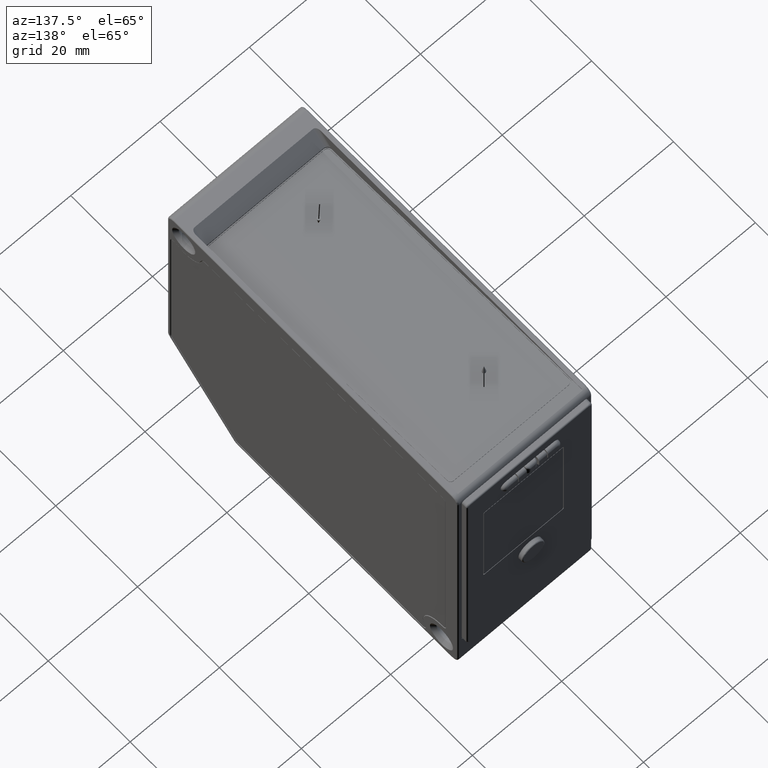
[diagram: clean part render]
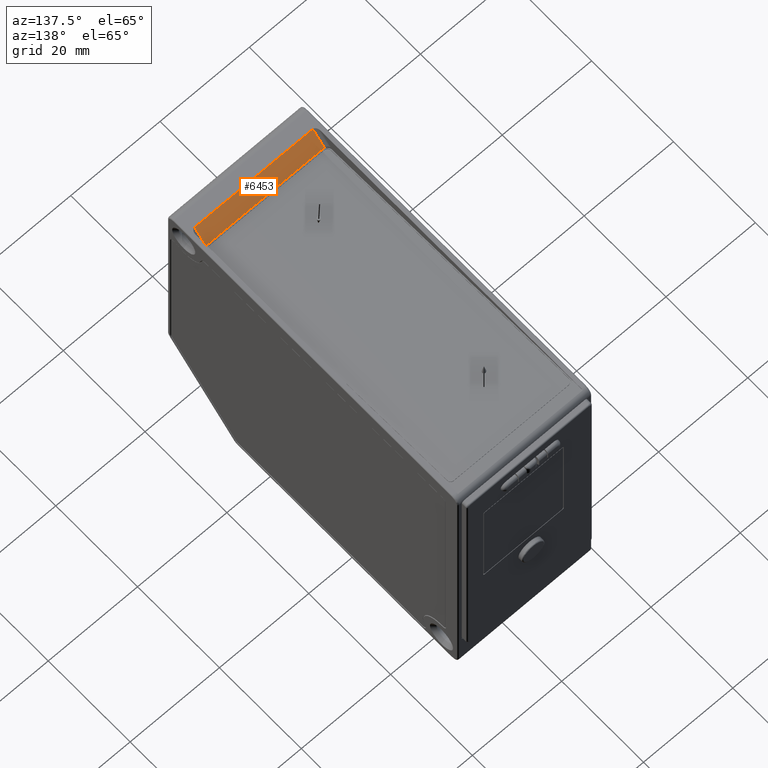
[diagram: same view with one face highlighted and labeled with its STEP entity id]
A machine part, auxiliary view. The second image highlights one B-rep face of the part: STEP entity #6453.
In plain terms, the highlighted planar face has unit normal (-0, -0.7071, -0.7071).
Its self-contained STEP definition (entity closure, byte-faithful):
#170 = EDGE_CURVE ( 'NONE', #5294, #3826, #12612, .T. ) ;
#371 = LINE ( 'NONE', #2425, #11814 ) ;
#623 = CARTESIAN_POINT ( 'NONE',  ( 0.5137795275590552047, 0.2964084542873273720, -0.1107079717068149838 ) ) ;
#740 = VECTOR ( 'NONE', #867, 39.37007874015748143 ) ;
#867 = DIRECTION ( 'NONE',  ( 1.000000000000000000, -4.628810314515842106E-17, -4.628810314515847652E-17 ) ) ;
#911 = EDGE_CURVE ( 'NONE', #2604, #8805, #3621, .T. ) ;
#1286 = LINE ( 'NONE', #2006, #4724 ) ;
#1421 = CARTESIAN_POINT ( 'NONE',  ( -0.5164289544364978335, 0.2964084542873273720, -0.1107079717068148450 ) ) ;
#1462 = EDGE_CURVE ( 'NONE', #2117, #3826, #371, .T. ) ;
#1589 = ORIENTED_EDGE ( 'NONE', *, *, #911, .F. ) ;
#1875 = CARTESIAN_POINT ( 'NONE',  ( 0.5190634948798953374, 0.2967034081832050640, -0.1110029256026926758 ) ) ;
#1922 = CARTESIAN_POINT ( 'NONE',  ( -0.5216535433070865757, 0.2964084542873275385, -0.1107079717068149838 ) ) ;
#1993 = ORIENTED_EDGE ( 'NONE', *, *, #4778, .F. ) ;
#2006 = CARTESIAN_POINT ( 'NONE',  ( -0.5216535433070865757, 0.3155610385143657326, -0.1298605559338531501 ) ) ;
#2117 = VERTEX_POINT ( 'NONE', #2821 ) ;
#2137 = CARTESIAN_POINT ( 'NONE',  ( -0.5216535433070866867, 0.2972900014379527556, -0.1115895188574402147 ) ) ;
#2316 = AXIS2_PLACEMENT_3D ( 'NONE', #2467, #7417, #7285 ) ;
#2425 = CARTESIAN_POINT ( 'NONE',  ( 0.5216535433070865757, 0.3155610385143656771, -0.1298605559338532056 ) ) ;
#2467 = CARTESIAN_POINT ( 'NONE',  ( -0.5216535433070865757, 0.3155610385143657326, -0.1298605559338531501 ) ) ;
#2604 = VERTEX_POINT ( 'NONE', #2137 ) ;
#2821 = CARTESIAN_POINT ( 'NONE',  ( 0.5216535433070866867, 0.2972900014379528111, -0.1115895188574404090 ) ) ;
#3544 = DIRECTION ( 'NONE',  ( -0.000000000000000000, -0.7071067811865479058, 0.7071067811865469066 ) ) ;
#3562 = CARTESIAN_POINT ( 'NONE',  ( 0.5905511811023621549, 0.1857004825805126103, 0.000000000000000000 ) ) ;
#3621 =( BOUNDED_CURVE ( )  B_SPLINE_CURVE ( 3, ( #9400, #7489, #1421, #4381 ),
 .UNSPECIFIED., .F., .T. ) 
 B_SPLINE_CURVE_WITH_KNOTS ( ( 4, 4 ),
 ( 6.071071996700356799, 6.283185307179586232 ),
 .UNSPECIFIED. ) 
 CURVE ( )  GEOMETRIC_REPRESENTATION_ITEM ( )  RATIONAL_B_SPLINE_CURVE ( ( 1.000000000000000000, 0.9962541750263333995, 0.9962541750263333995, 1.000000000000000000 ) ) 
 REPRESENTATION_ITEM ( '' )  );
#3653 = CARTESIAN_POINT ( 'NONE',  ( 0.5164289544364978335, 0.2964084542873273720, -0.1107079717068149421 ) ) ;
#3826 = VERTEX_POINT ( 'NONE', #4306 ) ;
#4192 =( BOUNDED_CURVE ( )  B_SPLINE_CURVE ( 3, ( #623, #3653, #1875, #9010 ),
 .UNSPECIFIED., .F., .F. ) 
 B_SPLINE_CURVE_WITH_KNOTS ( ( 4, 4 ),
 ( 3.141592653589793116, 3.353705964069022549 ),
 .UNSPECIFIED. ) 
 CURVE ( )  GEOMETRIC_REPRESENTATION_ITEM ( )  RATIONAL_B_SPLINE_CURVE ( ( 1.000000000000000000, 0.9962541750263333995, 0.9962541750263333995, 1.000000000000000000 ) ) 
 REPRESENTATION_ITEM ( '' )  );
#4306 = CARTESIAN_POINT ( 'NONE',  ( 0.5216535433070865757, 0.1857004825805123605, -2.561107494060246767E-17 ) ) ;
#4381 = CARTESIAN_POINT ( 'NONE',  ( -0.5137795275590552047, 0.2964084542873274275, -0.1107079717068149283 ) ) ;
#4608 = CARTESIAN_POINT ( 'NONE',  ( 0.5137795275590552047, 0.2964084542873273720, -0.1107079717068149838 ) ) ;
#4724 = VECTOR ( 'NONE', #6239, 39.37007874015748854 ) ;
#4778 = EDGE_CURVE ( 'NONE', #5294, #2604, #1286, .T. ) ;
#5294 = VERTEX_POINT ( 'NONE', #9767 ) ;
#5295 = PLANE ( 'NONE',  #2316 ) ;
#5533 = EDGE_CURVE ( 'NONE', #8805, #12005, #7865, .T. ) ;
#6239 = DIRECTION ( 'NONE',  ( 0.000000000000000000, 0.7071067811865479058, -0.7071067811865469066 ) ) ;
#6453 = ADVANCED_FACE ( 'NONE', ( #10256 ), #5295, .F. ) ;
#6862 = EDGE_LOOP ( 'NONE', ( #12642, #1589, #1993, #7465, #12598, #11093 ) ) ;
#7285 = DIRECTION ( 'NONE',  ( 0.000000000000000000, 0.7071067811865479058, -0.7071067811865469066 ) ) ;
#7417 = DIRECTION ( 'NONE',  ( -6.546126324440779419E-17, -0.7071067811865470176, -0.7071067811865480168 ) ) ;
#7465 = ORIENTED_EDGE ( 'NONE', *, *, #170, .T. ) ;
#7489 = CARTESIAN_POINT ( 'NONE',  ( -0.5190634948798953374, 0.2967034081832051196, -0.1110029256026925648 ) ) ;
#7865 = LINE ( 'NONE', #1922, #740 ) ;
#8805 = VERTEX_POINT ( 'NONE', #9066 ) ;
#9010 = CARTESIAN_POINT ( 'NONE',  ( 0.5216535433070866867, 0.2972900014379528111, -0.1115895188574404090 ) ) ;
#9066 = CARTESIAN_POINT ( 'NONE',  ( -0.5137795275590552047, 0.2964084542873274275, -0.1107079717068149283 ) ) ;
#9400 = CARTESIAN_POINT ( 'NONE',  ( -0.5216535433070866867, 0.2972900014379527556, -0.1115895188574402147 ) ) ;
#9767 = CARTESIAN_POINT ( 'NONE',  ( -0.5216535433070865757, 0.1857004825805124437, -2.134256245050205639E-17 ) ) ;
#10256 = FACE_OUTER_BOUND ( 'NONE', #6862, .T. ) ;
#11093 = ORIENTED_EDGE ( 'NONE', *, *, #12853, .F. ) ;
#11619 = DIRECTION ( 'NONE',  ( 1.000000000000000000, -0.000000000000000000, 0.000000000000000000 ) ) ;
#11814 = VECTOR ( 'NONE', #3544, 39.37007874015748854 ) ;
#11988 = VECTOR ( 'NONE', #11619, 39.37007874015748143 ) ;
#12005 = VERTEX_POINT ( 'NONE', #4608 ) ;
#12598 = ORIENTED_EDGE ( 'NONE', *, *, #1462, .F. ) ;
#12612 = LINE ( 'NONE', #3562, #11988 ) ;
#12642 = ORIENTED_EDGE ( 'NONE', *, *, #5533, .F. ) ;
#12853 = EDGE_CURVE ( 'NONE', #12005, #2117, #4192, .T. ) ;